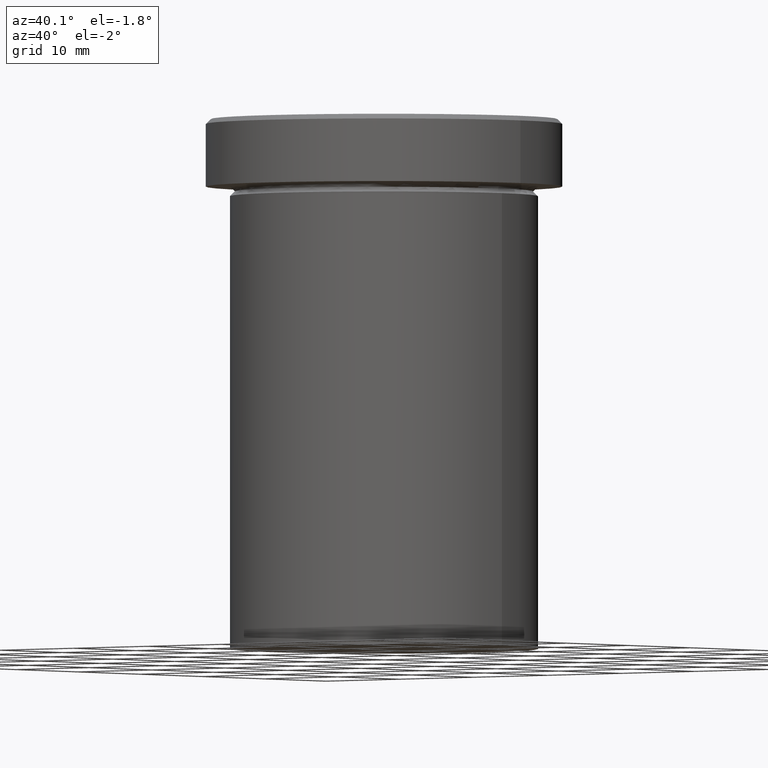
[diagram: clean part render]
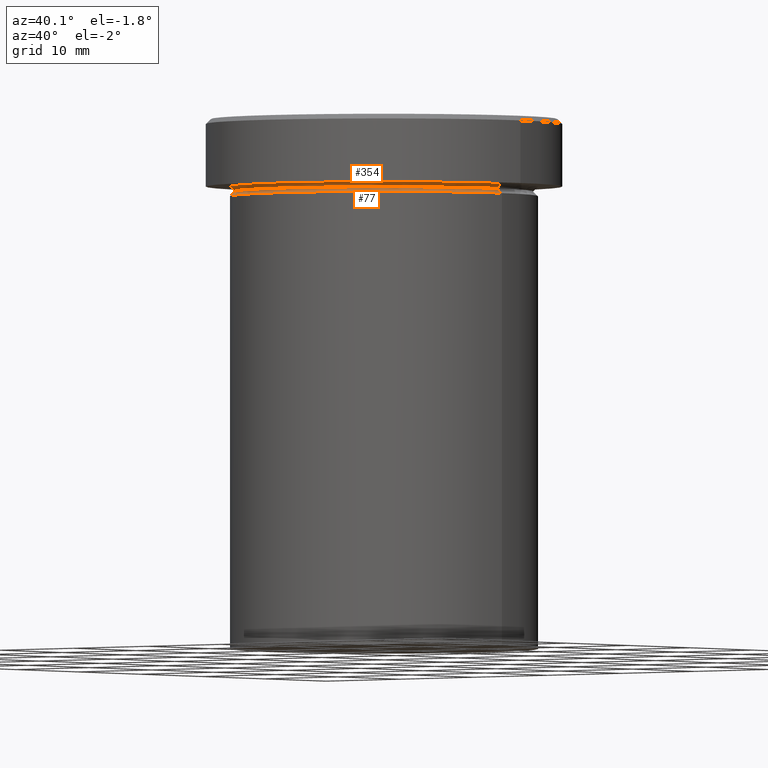
[diagram: same view with one multi-face feature highlighted, each face labeled with its STEP entity id]
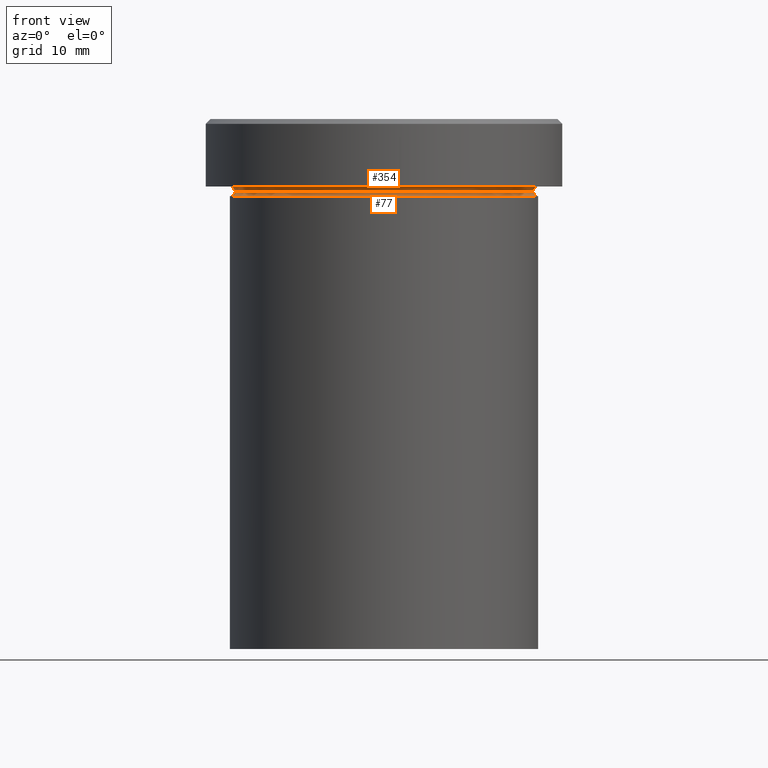
[diagram: same view with one multi-face feature highlighted, each face labeled with its STEP entity id]
A machine part, auxiliary view. The highlighted faces form ONE feature: a constant-radius fillet chain: 2 tangent blend faces with common blend radius 0.5 mm. The faces share edges in the B-rep.
A second angle (front view) of the same feature is appended — it is thin or edge-on in the first view.
Their STEP definitions:
[1] entity #354 (Torus):
#9 = DIRECTION ( 'NONE',  ( -0.000000000000000000, -0.000000000000000000, 1.000000000000000000 ) ) ;
#11 = CIRCLE ( 'NONE', #199, 15.50000000000000000 ) ;
#19 = TOROIDAL_SURFACE ( 'NONE', #176, 16.00000000000000000, 0.5000000000000000000 ) ;
#27 = CARTESIAN_POINT ( 'NONE',  ( 16.00000000000000000, 1.959434878635765131E-15, -7.500000000000000000 ) ) ;
#31 = VERTEX_POINT ( 'NONE', #244 ) ;
#34 = ORIENTED_EDGE ( 'NONE', *, *, #250, .F. ) ;
#43 = CARTESIAN_POINT ( 'NONE',  ( 16.00000000000000000, 1.959434878635765131E-15, -6.999999999999999112 ) ) ;
#44 = DIRECTION ( 'NONE',  ( -0.000000000000000000, -0.000000000000000000, 1.000000000000000000 ) ) ;
#73 = DIRECTION ( 'NONE',  ( 0.000000000000000000, 0.000000000000000000, -1.000000000000000000 ) ) ;
#75 = CIRCLE ( 'NONE', #279, 0.5000000000000004441 ) ;
#82 = EDGE_CURVE ( 'NONE', #150, #302, #218, .T. ) ;
#88 = CIRCLE ( 'NONE', #172, 16.00000000000000000 ) ;
#109 = DIRECTION ( 'NONE',  ( -1.000000000000000000, 0.000000000000000000, 0.000000000000000000 ) ) ;
#130 = DIRECTION ( 'NONE',  ( -0.000000000000000000, -1.000000000000000000, -0.000000000000000000 ) ) ;
#150 = VERTEX_POINT ( 'NONE', #280 ) ;
#154 = AXIS2_PLACEMENT_3D ( 'NONE', #27, #187, #185 ) ;
#158 = ORIENTED_EDGE ( 'NONE', *, *, #182, .T. ) ;
#160 = CARTESIAN_POINT ( 'NONE',  ( -16.00000000000000000, 0.000000000000000000, -7.500000000000000000 ) ) ;
#169 = CARTESIAN_POINT ( 'NONE',  ( 0.000000000000000000, 0.000000000000000000, -7.500000000000000000 ) ) ;
#172 = AXIS2_PLACEMENT_3D ( 'NONE', #260, #9, #333 ) ;
#176 = AXIS2_PLACEMENT_3D ( 'NONE', #341, #73, #109 ) ;
#179 = ORIENTED_EDGE ( 'NONE', *, *, #227, .F. ) ;
#182 = EDGE_CURVE ( 'NONE', #314, #150, #11, .T. ) ;
#185 = DIRECTION ( 'NONE',  ( -1.000000000000000000, -1.224646799147349509E-16, 0.000000000000000000 ) ) ;
#187 = DIRECTION ( 'NONE',  ( -1.224646799147353207E-16, 1.000000000000000000, 0.000000000000000000 ) ) ;
#199 = AXIS2_PLACEMENT_3D ( 'NONE', #169, #44, #292 ) ;
#218 = CIRCLE ( 'NONE', #154, 0.5000000000000004441 ) ;
#227 = EDGE_CURVE ( 'NONE', #31, #302, #88, .T. ) ;
#233 = EDGE_LOOP ( 'NONE', ( #158, #374, #179, #34 ) ) ;
#244 = CARTESIAN_POINT ( 'NONE',  ( -16.00000000000000000, 0.000000000000000000, -6.999999999999999112 ) ) ;
#250 = EDGE_CURVE ( 'NONE', #314, #31, #75, .T. ) ;
#260 = CARTESIAN_POINT ( 'NONE',  ( 0.000000000000000000, 0.000000000000000000, -6.999999999999999112 ) ) ;
#279 = AXIS2_PLACEMENT_3D ( 'NONE', #160, #130, #383 ) ;
#280 = CARTESIAN_POINT ( 'NONE',  ( 15.50000000000000000, 0.000000000000000000, -7.500000000000000000 ) ) ;
#292 = DIRECTION ( 'NONE',  ( 1.000000000000000000, 0.000000000000000000, 0.000000000000000000 ) ) ;
#302 = VERTEX_POINT ( 'NONE', #43 ) ;
#314 = VERTEX_POINT ( 'NONE', #364 ) ;
#333 = DIRECTION ( 'NONE',  ( -1.000000000000000000, 0.000000000000000000, 0.000000000000000000 ) ) ;
#341 = CARTESIAN_POINT ( 'NONE',  ( 0.000000000000000000, 0.000000000000000000, -7.500000000000000000 ) ) ;
#354 = ADVANCED_FACE ( 'NONE', ( #369 ), #19, .F. ) ;
#364 = CARTESIAN_POINT ( 'NONE',  ( -15.50000000000000000, 1.928818708657081344E-15, -7.500000000000000000 ) ) ;
#369 = FACE_OUTER_BOUND ( 'NONE', #233, .T. ) ;
#374 = ORIENTED_EDGE ( 'NONE', *, *, #82, .T. ) ;
#383 = DIRECTION ( 'NONE',  ( 0.000000000000000000, 0.000000000000000000, -1.000000000000000000 ) ) ;
[2] entity #77 (Torus):
#3 = CARTESIAN_POINT ( 'NONE',  ( 16.00000000000000000, 0.000000000000000000, -8.000000000000000000 ) ) ;
#4 = CARTESIAN_POINT ( 'NONE',  ( -16.00000000000000000, 1.959434878635765131E-15, -8.000000000000000000 ) ) ;
#10 = CARTESIAN_POINT ( 'NONE',  ( 0.000000000000000000, 0.000000000000000000, -7.500000000000000000 ) ) ;
#11 = CIRCLE ( 'NONE', #199, 15.50000000000000000 ) ;
#22 = AXIS2_PLACEMENT_3D ( 'NONE', #10, #384, #247 ) ;
#35 = CARTESIAN_POINT ( 'NONE',  ( 0.000000000000000000, 0.000000000000000000, -8.000000000000000000 ) ) ;
#37 = EDGE_CURVE ( 'NONE', #153, #133, #399, .T. ) ;
#44 = DIRECTION ( 'NONE',  ( -0.000000000000000000, -0.000000000000000000, 1.000000000000000000 ) ) ;
#68 = ORIENTED_EDGE ( 'NONE', *, *, #37, .T. ) ;
#77 = ADVANCED_FACE ( 'NONE', ( #132 ), #339, .F. ) ;
#98 = DIRECTION ( 'NONE',  ( -0.000000000000000000, -0.000000000000000000, 1.000000000000000000 ) ) ;
#114 = ORIENTED_EDGE ( 'NONE', *, *, #182, .F. ) ;
#127 = EDGE_CURVE ( 'NONE', #150, #133, #311, .T. ) ;
#132 = FACE_OUTER_BOUND ( 'NONE', #180, .T. ) ;
#133 = VERTEX_POINT ( 'NONE', #3 ) ;
#134 = DIRECTION ( 'NONE',  ( -1.000000000000000000, 1.224646799147349509E-16, 0.000000000000000000 ) ) ;
#150 = VERTEX_POINT ( 'NONE', #280 ) ;
#153 = VERTEX_POINT ( 'NONE', #4 ) ;
#162 = DIRECTION ( 'NONE',  ( 0.000000000000000000, -1.000000000000000000, 0.000000000000000000 ) ) ;
#169 = CARTESIAN_POINT ( 'NONE',  ( 0.000000000000000000, 0.000000000000000000, -7.500000000000000000 ) ) ;
#180 = EDGE_LOOP ( 'NONE', ( #114, #320, #68, #305 ) ) ;
#182 = EDGE_CURVE ( 'NONE', #314, #150, #11, .T. ) ;
#190 = CARTESIAN_POINT ( 'NONE',  ( 16.00000000000000000, 0.000000000000000000, -7.500000000000000000 ) ) ;
#195 = DIRECTION ( 'NONE',  ( 1.224646799147353207E-16, 1.000000000000000000, 0.000000000000000000 ) ) ;
#196 = AXIS2_PLACEMENT_3D ( 'NONE', #35, #98, #282 ) ;
#199 = AXIS2_PLACEMENT_3D ( 'NONE', #169, #44, #292 ) ;
#222 = AXIS2_PLACEMENT_3D ( 'NONE', #190, #162, #252 ) ;
#231 = CIRCLE ( 'NONE', #406, 0.5000000000000004441 ) ;
#234 = CARTESIAN_POINT ( 'NONE',  ( -16.00000000000000000, 1.959434878635765131E-15, -7.500000000000000000 ) ) ;
#247 = DIRECTION ( 'NONE',  ( 1.000000000000000000, 0.000000000000000000, 0.000000000000000000 ) ) ;
#252 = DIRECTION ( 'NONE',  ( 0.000000000000000000, 0.000000000000000000, -1.000000000000000000 ) ) ;
#280 = CARTESIAN_POINT ( 'NONE',  ( 15.50000000000000000, 0.000000000000000000, -7.500000000000000000 ) ) ;
#282 = DIRECTION ( 'NONE',  ( 1.000000000000000000, 0.000000000000000000, 0.000000000000000000 ) ) ;
#292 = DIRECTION ( 'NONE',  ( 1.000000000000000000, 0.000000000000000000, 0.000000000000000000 ) ) ;
#305 = ORIENTED_EDGE ( 'NONE', *, *, #127, .F. ) ;
#311 = CIRCLE ( 'NONE', #222, 0.5000000000000004441 ) ;
#314 = VERTEX_POINT ( 'NONE', #364 ) ;
#315 = EDGE_CURVE ( 'NONE', #314, #153, #231, .T. ) ;
#320 = ORIENTED_EDGE ( 'NONE', *, *, #315, .T. ) ;
#339 = TOROIDAL_SURFACE ( 'NONE', #22, 16.00000000000000000, 0.5000000000000000000 ) ;
#364 = CARTESIAN_POINT ( 'NONE',  ( -15.50000000000000000, 1.928818708657081344E-15, -7.500000000000000000 ) ) ;
#384 = DIRECTION ( 'NONE',  ( -0.000000000000000000, -0.000000000000000000, 1.000000000000000000 ) ) ;
#399 = CIRCLE ( 'NONE', #196, 16.00000000000000000 ) ;
#406 = AXIS2_PLACEMENT_3D ( 'NONE', #234, #195, #134 ) ;